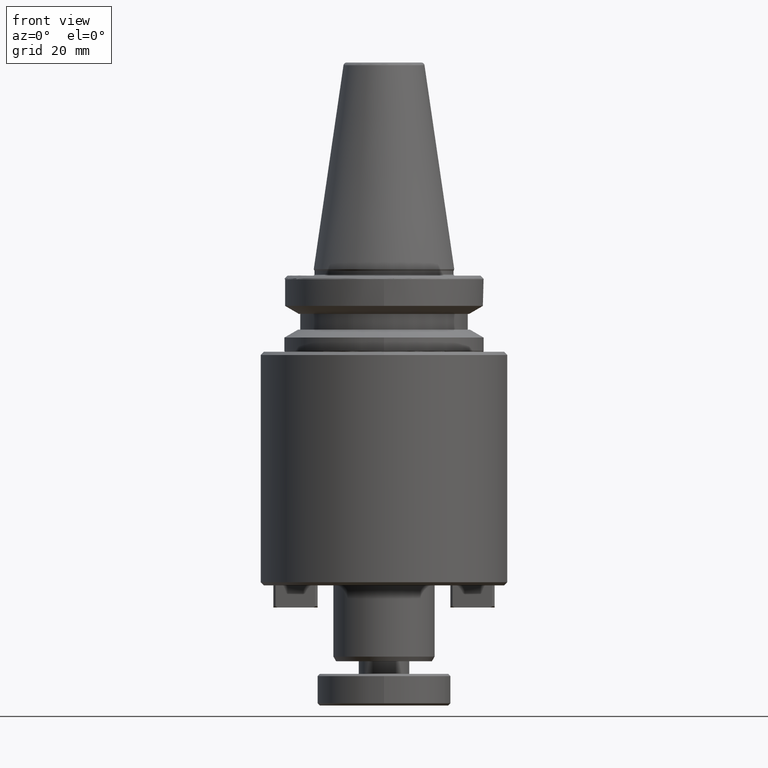
[diagram: clean part render]
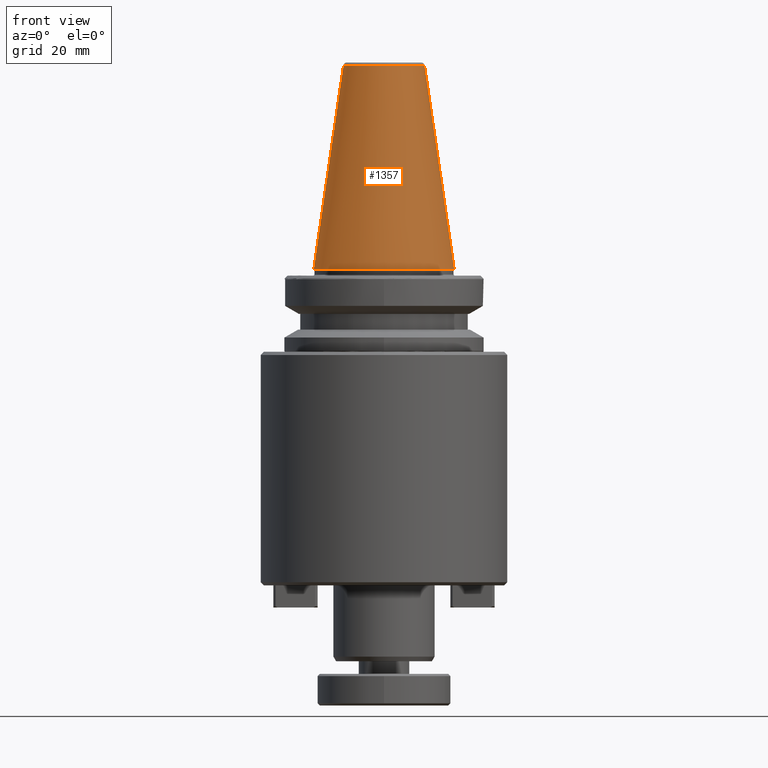
[diagram: same view with one face highlighted and labeled with its STEP entity id]
A machine part, front view. The second image highlights one B-rep face of the part: STEP entity #1357.
In plain terms, the highlighted conical surface has half-angle 8.297 deg.
Its self-contained STEP definition (entity closure, byte-faithful):
#21 = CARTESIAN_POINT ( 'NONE',  ( -22.22499999999999800, 0.0000000000000000000, 0.0000000000000000000 ) ) ;
#235 = VERTEX_POINT ( 'NONE', #21 ) ;
#300 = EDGE_CURVE ( 'NONE', #428, #354, #987, .T. ) ;
#309 = EDGE_CURVE ( 'NONE', #235, #2680, #1339, .T. ) ;
#354 = VERTEX_POINT ( 'NONE', #2230 ) ;
#428 = VERTEX_POINT ( 'NONE', #2422 ) ;
#512 = CARTESIAN_POINT ( 'NONE',  ( 12.81219950700000300, 1.569041911628485000E-015, 64.54430822700000200 ) ) ;
#727 = DIRECTION ( 'NONE',  ( -1.000000000000000000, 0.0000000000000000000, 0.0000000000000000000 ) ) ;
#789 = DIRECTION ( 'NONE',  ( 0.1443082272688266400, 1.767266086153973400E-017, -0.9895327864919528600 ) ) ;
#950 = EDGE_CURVE ( 'NONE', #354, #2680, #2872, .T. ) ;
#964 = CARTESIAN_POINT ( 'NONE',  ( 0.0000000000000000000, 0.0000000000000000000, 64.54430822700000200 ) ) ;
#979 = EDGE_CURVE ( 'NONE', #428, #235, #2737, .T. ) ;
#987 = CIRCLE ( 'NONE', #1338, 12.81219950700000300 ) ;
#1112 = VECTOR ( 'NONE', #789, 1000.000000000000000 ) ;
#1194 = CARTESIAN_POINT ( 'NONE',  ( -12.81219950700000300, 0.0000000000000000000, 64.54430822700000200 ) ) ;
#1235 = DIRECTION ( 'NONE',  ( 0.0000000000000000000, 0.0000000000000000000, -1.000000000000000000 ) ) ;
#1267 = AXIS2_PLACEMENT_3D ( 'NONE', #2176, #2178, #2180 ) ;
#1274 = EDGE_LOOP ( 'NONE', ( #2953, #2981, #3022, #3036 ) ) ;
#1305 = DIRECTION ( 'NONE',  ( -0.1443082272688266400, 0.0000000000000000000, -0.9895327864919528600 ) ) ;
#1338 = AXIS2_PLACEMENT_3D ( 'NONE', #2138, #2150, #2153 ) ;
#1339 = CIRCLE ( 'NONE', #1267, 22.22499999999999800 ) ;
#1357 = ADVANCED_FACE ( 'NONE', ( #2427 ), #2383, .T. ) ;
#1666 = CARTESIAN_POINT ( 'NONE',  ( 22.22499999999999800, 2.721777511104992100E-015, 0.0000000000000000000 ) ) ;
#2138 = CARTESIAN_POINT ( 'NONE',  ( 0.0000000000000000000, 0.0000000000000000000, 64.54430822699997300 ) ) ;
#2150 = DIRECTION ( 'NONE',  ( -0.0000000000000000000, -0.0000000000000000000, 1.000000000000000000 ) ) ;
#2153 = DIRECTION ( 'NONE',  ( -1.000000000000000000, 0.0000000000000000000, 2.166339635943424900E-015 ) ) ;
#2176 = CARTESIAN_POINT ( 'NONE',  ( 0.0000000000000000000, 0.0000000000000000000, 0.0000000000000000000 ) ) ;
#2178 = DIRECTION ( 'NONE',  ( 0.0000000000000000000, 0.0000000000000000000, 1.000000000000000000 ) ) ;
#2180 = DIRECTION ( 'NONE',  ( 1.000000000000000000, 0.0000000000000000000, 0.0000000000000000000 ) ) ;
#2230 = CARTESIAN_POINT ( 'NONE',  ( 12.81219950696690200, -3.941739068562204500E-009, 64.54430822700854300 ) ) ;
#2295 = AXIS2_PLACEMENT_3D ( 'NONE', #964, #1235, #727 ) ;
#2383 = CONICAL_SURFACE ( 'NONE', #2295, 12.81219950700000300, 0.1448138465489547400 ) ;
#2422 = CARTESIAN_POINT ( 'NONE',  ( -12.81219950696881500, -1.150453881886354600E-009, 64.54430822699541200 ) ) ;
#2427 = FACE_OUTER_BOUND ( 'NONE', #1274, .T. ) ;
#2680 = VERTEX_POINT ( 'NONE', #1666 ) ;
#2737 = LINE ( 'NONE', #1194, #2784 ) ;
#2784 = VECTOR ( 'NONE', #1305, 1000.000000000000000 ) ;
#2872 = LINE ( 'NONE', #512, #1112 ) ;
#2953 = ORIENTED_EDGE ( 'NONE', *, *, #950, .F. ) ;
#2981 = ORIENTED_EDGE ( 'NONE', *, *, #300, .F. ) ;
#3022 = ORIENTED_EDGE ( 'NONE', *, *, #979, .T. ) ;
#3036 = ORIENTED_EDGE ( 'NONE', *, *, #309, .T. ) ;